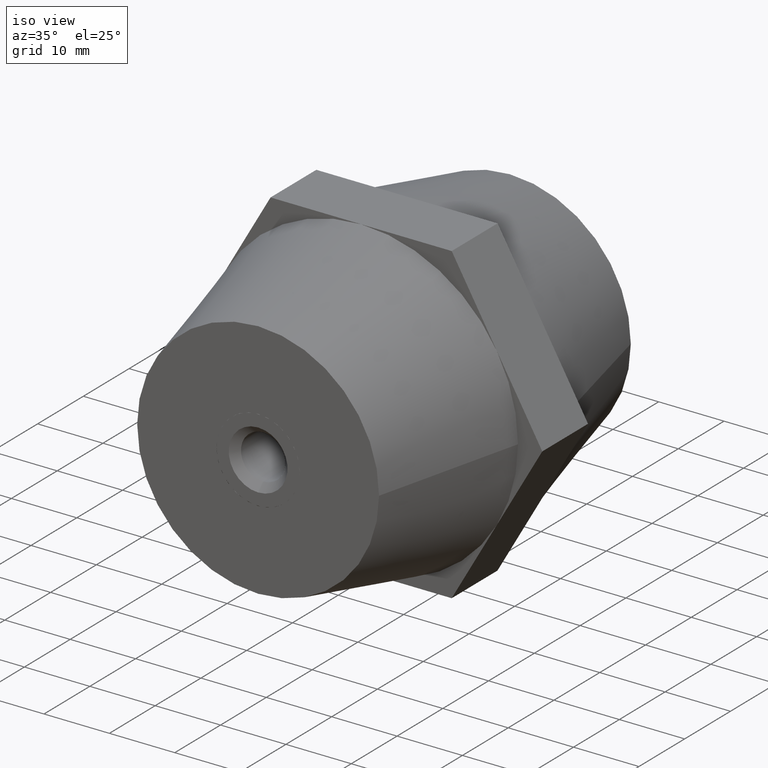
[diagram: clean part render]
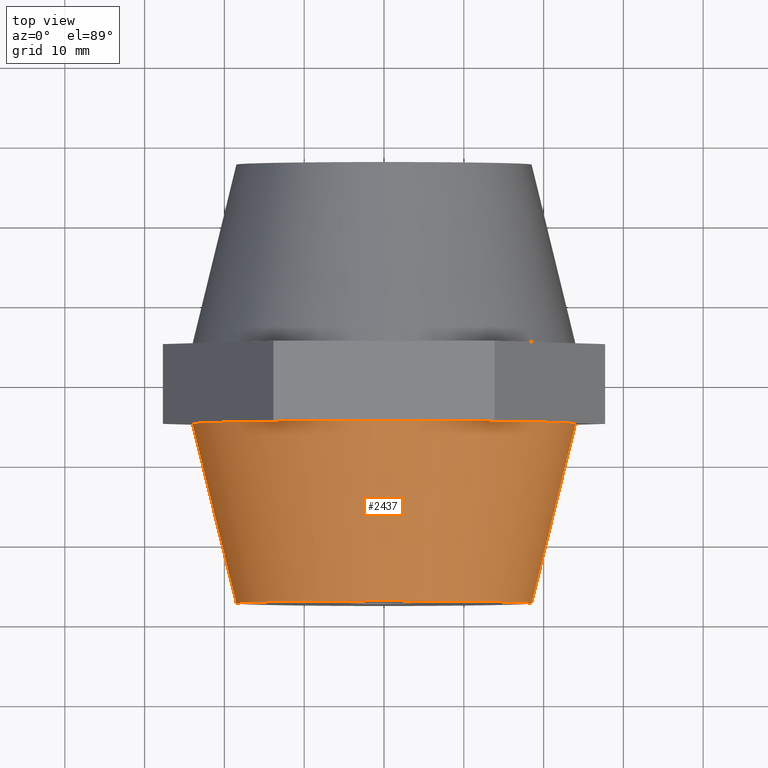
[diagram: tour spotlight — one face highlighted and labeled with its STEP entity id]
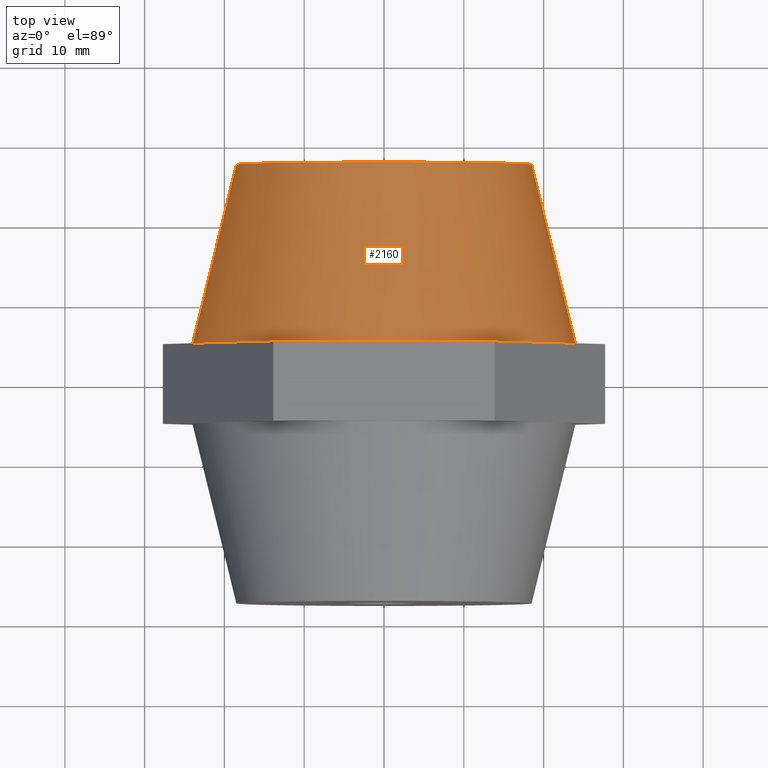
[diagram: tour spotlight — one face highlighted and labeled with its STEP entity id]
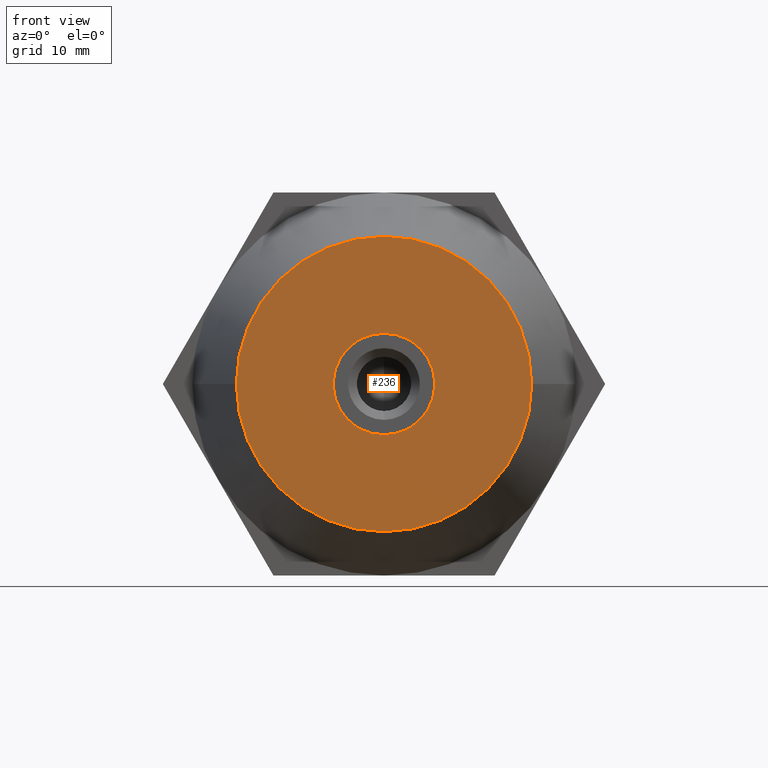
[diagram: tour spotlight — one face highlighted and labeled with its STEP entity id]
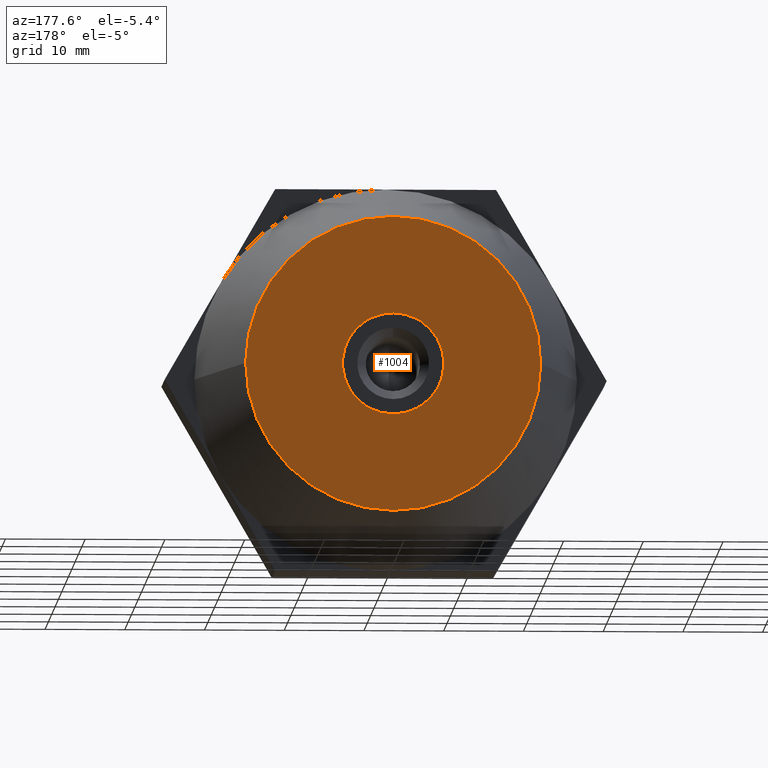
[diagram: tour spotlight — one face highlighted and labeled with its STEP entity id]
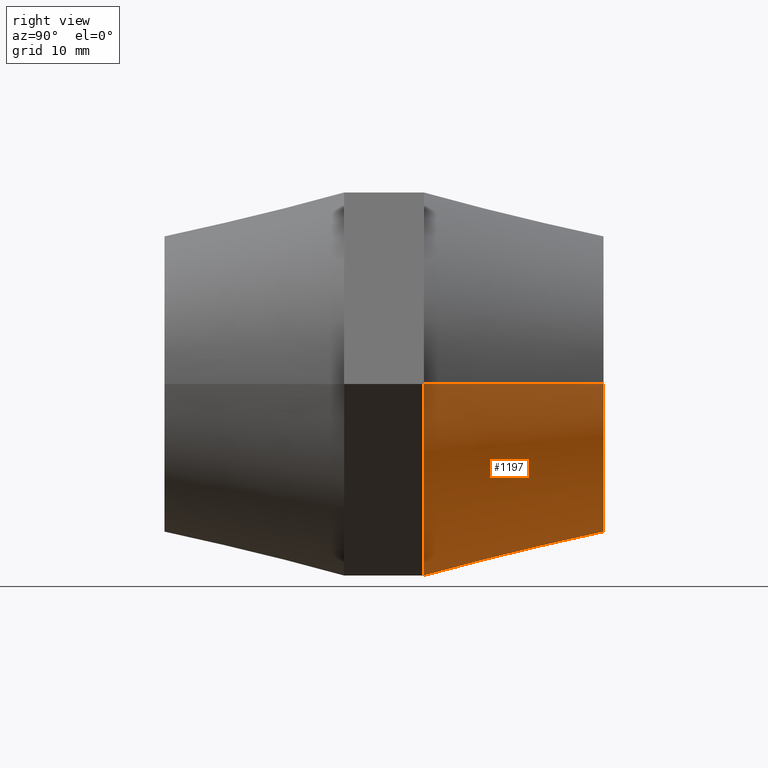
[diagram: tour spotlight — one face highlighted and labeled with its STEP entity id]
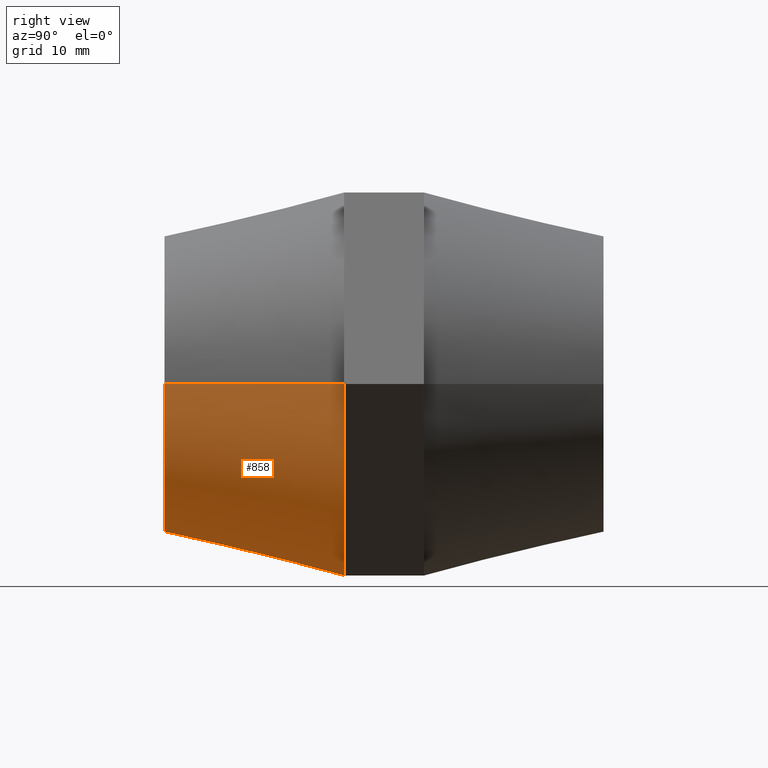
[diagram: tour spotlight — one face highlighted and labeled with its STEP entity id]
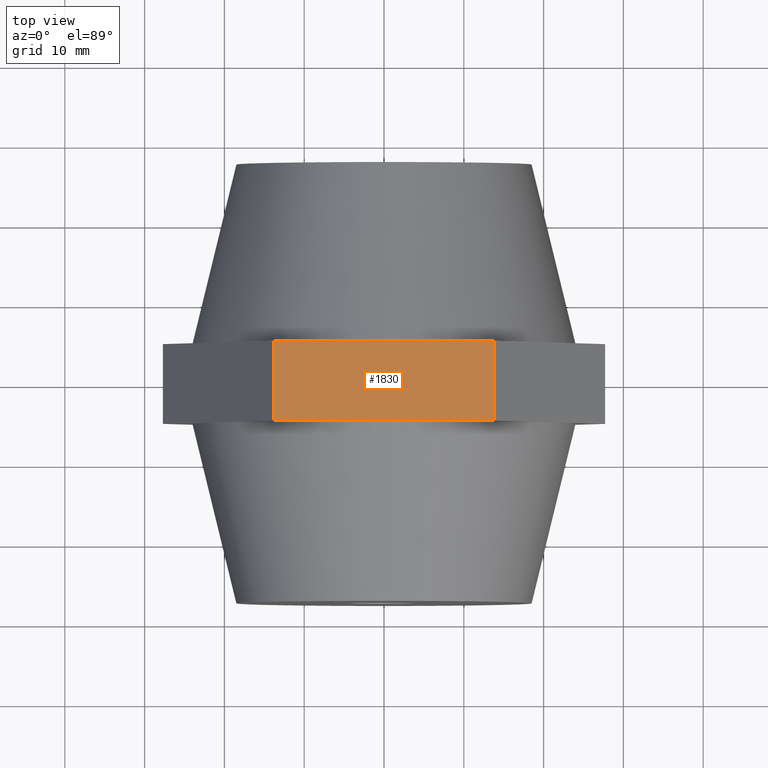
[diagram: tour spotlight — one face highlighted and labeled with its STEP entity id]
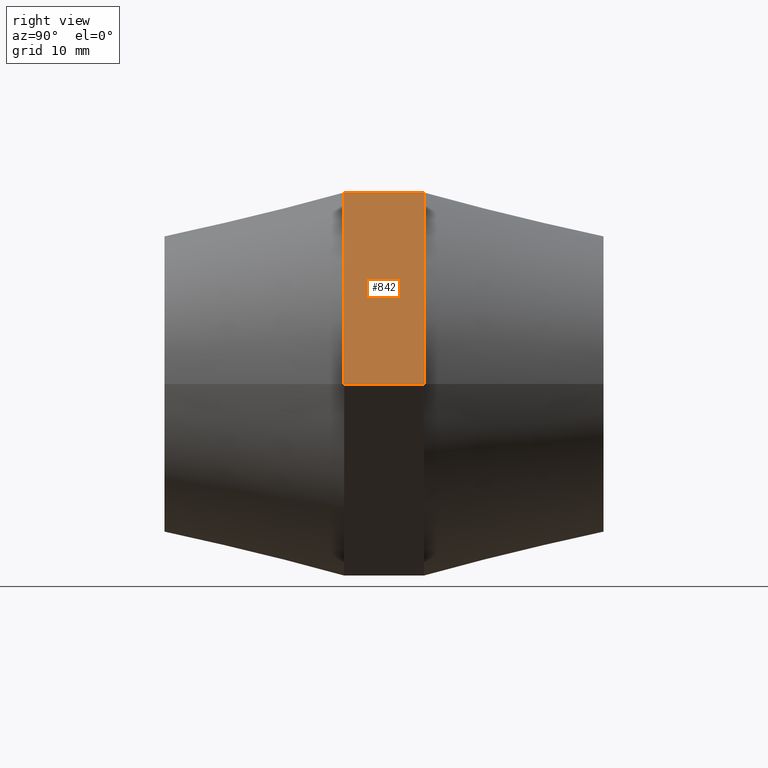
[diagram: tour spotlight — one face highlighted and labeled with its STEP entity id]
A machine part: a face-by-face anatomy tour. The part has 154 B-rep faces; the first image is the clean iso view, then the 8 largest visible faces are spotlighted one at a time (largest first), each with its STEP entity span.

Face 1 — top view, entity #2437. In plain terms, the highlighted conical surface has half-angle 13.736 deg.
Definition (entity closure, byte-faithful):
#16 = EDGE_CURVE ( 'NONE', #3440, #2326, #94, .T. ) ;
#69 = DIRECTION ( 'NONE',  ( 0.0000000000000000000, 0.0000000000000000000, 1.000000000000000000 ) ) ;
#94 = CIRCLE ( 'NONE', #2059, 24.00000000000000000 ) ;
#132 = DIRECTION ( 'NONE',  ( -1.000000000000000000, -1.875376730785737500E-016, 0.0000000000000000000 ) ) ;
#198 = AXIS2_PLACEMENT_3D ( 'NONE', #3121, #2288, #1663 ) ;
#211 = VERTEX_POINT ( 'NONE', #3705 ) ;
#287 = CARTESIAN_POINT ( 'NONE',  ( 4.476762181554124600E-016, -5.000000000000000000, 24.00000000000000000 ) ) ;
#316 = EDGE_CURVE ( 'NONE', #3604, #725, #1250, .T. ) ;
#561 = VECTOR ( 'NONE', #2937, 1000.000000000000100 ) ;
#568 = AXIS2_PLACEMENT_3D ( 'NONE', #2088, #2981, #3248 ) ;
#571 = VERTEX_POINT ( 'NONE', #2473 ) ;
#581 = ORIENTED_EDGE ( 'NONE', *, *, #16, .F. ) ;
#648 = CIRCLE ( 'NONE', #2727, 24.00000000000000000 ) ;
#713 = CARTESIAN_POINT ( 'NONE',  ( -18.49999999999999300, -27.50000000000000400, 0.0000000000000000000 ) ) ;
#725 = VERTEX_POINT ( 'NONE', #1336 ) ;
#754 = CARTESIAN_POINT ( 'NONE',  ( 24.00000000000000400, -5.000000000000000000, 2.939152317953647900E-015 ) ) ;
#936 = FACE_OUTER_BOUND ( 'NONE', #1967, .T. ) ;
#990 = AXIS2_PLACEMENT_3D ( 'NONE', #1675, #2264, #1106 ) ;
#1008 = CARTESIAN_POINT ( 'NONE',  ( 6.938893903907230000E-015, -27.50000000000000000, 0.0000000000000000000 ) ) ;
#1024 = EDGE_CURVE ( 'NONE', #1145, #3440, #3081, .T. ) ;
#1094 = EDGE_CURVE ( 'NONE', #211, #1145, #2037, .T. ) ;
#1106 = DIRECTION ( 'NONE',  ( 0.0000000000000000000, 0.0000000000000000000, 1.000000000000000000 ) ) ;
#1145 = VERTEX_POINT ( 'NONE', #287 ) ;
#1250 = LINE ( 'NONE', #1698, #3772 ) ;
#1336 = CARTESIAN_POINT ( 'NONE',  ( -23.99999999999999600, -5.000000000000000000, 0.0000000000000000000 ) ) ;
#1510 = CARTESIAN_POINT ( 'NONE',  ( 3.452305415629730200E-015, -5.000000000000000000, 9.090956650916130900E-016 ) ) ;
#1541 = DIRECTION ( 'NONE',  ( 0.0000000000000000000, 1.000000000000000000, 0.0000000000000000000 ) ) ;
#1663 = DIRECTION ( 'NONE',  ( -1.000000000000000000, -1.445602896647339200E-016, 0.0000000000000000000 ) ) ;
#1675 = CARTESIAN_POINT ( 'NONE',  ( 3.452305415629730200E-015, -5.000000000000000000, 9.090956650916130900E-016 ) ) ;
#1698 = CARTESIAN_POINT ( 'NONE',  ( -23.99999999999999600, -5.000000000000003600, 0.0000000000000000000 ) ) ;
#1902 = DIRECTION ( 'NONE',  ( -1.549594883678885000E-016, 1.000000000000000000, 0.0000000000000000000 ) ) ;
#1927 = ORIENTED_EDGE ( 'NONE', *, *, #1024, .F. ) ;
#1948 = ORIENTED_EDGE ( 'NONE', *, *, #2583, .F. ) ;
#1967 = EDGE_LOOP ( 'NONE', ( #2545, #2478, #581, #1927, #3335, #1948, #2348 ) ) ;
#2037 = CIRCLE ( 'NONE', #198, 24.00000000000000000 ) ;
#2059 = AXIS2_PLACEMENT_3D ( 'NONE', #1510, #2384, #2994 ) ;
#2088 = CARTESIAN_POINT ( 'NONE',  ( 3.452305415629730200E-015, -5.000000000000000000, 0.0000000000000000000 ) ) ;
#2264 = DIRECTION ( 'NONE',  ( 0.0000000000000000000, 1.000000000000000000, 0.0000000000000000000 ) ) ;
#2270 = EDGE_CURVE ( 'NONE', #3604, #571, #2798, .T. ) ;
#2288 = DIRECTION ( 'NONE',  ( -1.549594883678885000E-016, 1.000000000000000000, 0.0000000000000000000 ) ) ;
#2326 = VERTEX_POINT ( 'NONE', #754 ) ;
#2348 = ORIENTED_EDGE ( 'NONE', *, *, #316, .F. ) ;
#2382 = AXIS2_PLACEMENT_3D ( 'NONE', #1008, #1902, #132 ) ;
#2384 = DIRECTION ( 'NONE',  ( 0.0000000000000000000, 1.000000000000000000, 0.0000000000000000000 ) ) ;
#2437 = ADVANCED_FACE ( 'NONE', ( #936 ), #2997, .T. ) ;
#2473 = CARTESIAN_POINT ( 'NONE',  ( 18.50000000000000700, -27.49999999999999600, 2.602374448188125100E-015 ) ) ;
#2478 = ORIENTED_EDGE ( 'NONE', *, *, #2652, .T. ) ;
#2545 = ORIENTED_EDGE ( 'NONE', *, *, #2270, .T. ) ;
#2583 = EDGE_CURVE ( 'NONE', #725, #211, #648, .T. ) ;
#2652 = EDGE_CURVE ( 'NONE', #571, #2326, #3266, .T. ) ;
#2727 = AXIS2_PLACEMENT_3D ( 'NONE', #3280, #1541, #69 ) ;
#2798 = CIRCLE ( 'NONE', #2382, 18.50000000000000000 ) ;
#2937 = DIRECTION ( 'NONE',  ( 0.2374530904769897900, 0.9713990064967775700, 2.907961672002925300E-017 ) ) ;
#2981 = DIRECTION ( 'NONE',  ( -1.549594883678885000E-016, 1.000000000000000000, 0.0000000000000000000 ) ) ;
#2994 = DIRECTION ( 'NONE',  ( 0.0000000000000000000, 0.0000000000000000000, 1.000000000000000000 ) ) ;
#2997 = CONICAL_SURFACE ( 'NONE', #568, 24.00000000000000000, 0.2397431088704564400 ) ;
#3081 = CIRCLE ( 'NONE', #990, 24.00000000000000000 ) ;
#3121 = CARTESIAN_POINT ( 'NONE',  ( 3.452305415629730200E-015, -5.000000000000000000, 0.0000000000000000000 ) ) ;
#3209 = CARTESIAN_POINT ( 'NONE',  ( 24.00000000000000400, -4.999999999999996400, 2.939152317953647900E-015 ) ) ;
#3248 = DIRECTION ( 'NONE',  ( -1.000000000000000000, -1.445602896647339200E-016, 0.0000000000000000000 ) ) ;
#3266 = LINE ( 'NONE', #3209, #561 ) ;
#3280 = CARTESIAN_POINT ( 'NONE',  ( 3.452305415629730200E-015, -5.000000000000000000, 9.090956650916130900E-016 ) ) ;
#3335 = ORIENTED_EDGE ( 'NONE', *, *, #1094, .F. ) ;
#3440 = VERTEX_POINT ( 'NONE', #3521 ) ;
#3443 = DIRECTION ( 'NONE',  ( -0.2374530904769900600, 0.9713990064967775700, 0.0000000000000000000 ) ) ;
#3521 = CARTESIAN_POINT ( 'NONE',  ( 20.78460969082655300, -5.000000000000000000, 12.00000000000000000 ) ) ;
#3604 = VERTEX_POINT ( 'NONE', #713 ) ;
#3705 = CARTESIAN_POINT ( 'NONE',  ( -20.78460969082655300, -5.000000000000000000, 12.00000000000000000 ) ) ;
#3772 = VECTOR ( 'NONE', #3443, 999.9999999999998900 ) ;

Face 2 — top view, entity #2160. In plain terms, the highlighted conical surface has half-angle 13.736 deg.
Definition (entity closure, byte-faithful):
#126 = AXIS2_PLACEMENT_3D ( 'NONE', #135, #1905, #2198 ) ;
#135 = CARTESIAN_POINT ( 'NONE',  ( 1.902710531950845100E-015, 5.000000000000000000, 0.0000000000000000000 ) ) ;
#160 = DIRECTION ( 'NONE',  ( -1.549594883678885000E-016, 1.000000000000000000, 0.0000000000000000000 ) ) ;
#161 = CARTESIAN_POINT ( 'NONE',  ( -18.50000000000000000, 27.49999999999999600, 2.265596578422603400E-015 ) ) ;
#171 = VERTEX_POINT ( 'NONE', #781 ) ;
#224 = CONICAL_SURFACE ( 'NONE', #2009, 18.50000000000000000, 0.2397431088704571600 ) ;
#237 = CIRCLE ( 'NONE', #2149, 24.00000000000000000 ) ;
#266 = VERTEX_POINT ( 'NONE', #2320 ) ;
#293 = EDGE_CURVE ( 'NONE', #1277, #3325, #1523, .T. ) ;
#312 = CARTESIAN_POINT ( 'NONE',  ( -1.583877956326650100E-015, 27.50000000000000000, 0.0000000000000000000 ) ) ;
#314 = VECTOR ( 'NONE', #3153, 1000.000000000000100 ) ;
#329 = DIRECTION ( 'NONE',  ( -1.000000000000000000, -1.875376730785737500E-016, 0.0000000000000000000 ) ) ;
#503 = VERTEX_POINT ( 'NONE', #1619 ) ;
#505 = VECTOR ( 'NONE', #3698, 1000.000000000000200 ) ;
#521 = EDGE_CURVE ( 'NONE', #266, #3163, #966, .T. ) ;
#573 = EDGE_CURVE ( 'NONE', #171, #696, #3406, .T. ) ;
#679 = CIRCLE ( 'NONE', #2510, 24.00000000000000000 ) ;
#696 = VERTEX_POINT ( 'NONE', #3004 ) ;
#749 = DIRECTION ( 'NONE',  ( 1.549594883678885000E-016, -1.000000000000000000, 0.0000000000000000000 ) ) ;
#774 = CARTESIAN_POINT ( 'NONE',  ( 1.902710531950845100E-015, 5.000000000000000000, 0.0000000000000000000 ) ) ;
#781 = CARTESIAN_POINT ( 'NONE',  ( -18.50000000000000000, 27.49999999999999600, 2.602374448188125800E-015 ) ) ;
#966 = CIRCLE ( 'NONE', #126, 24.00000000000000000 ) ;
#987 = ORIENTED_EDGE ( 'NONE', *, *, #2959, .T. ) ;
#1075 = ORIENTED_EDGE ( 'NONE', *, *, #1987, .T. ) ;
#1102 = DIRECTION ( 'NONE',  ( -1.549594883678885000E-016, 1.000000000000000000, 0.0000000000000000000 ) ) ;
#1138 = ORIENTED_EDGE ( 'NONE', *, *, #521, .T. ) ;
#1195 = FACE_OUTER_BOUND ( 'NONE', #2906, .T. ) ;
#1277 = VERTEX_POINT ( 'NONE', #2972 ) ;
#1397 = CARTESIAN_POINT ( 'NONE',  ( 18.50000000000000000, 27.50000000000000400, 0.0000000000000000000 ) ) ;
#1439 = ORIENTED_EDGE ( 'NONE', *, *, #573, .T. ) ;
#1523 = LINE ( 'NONE', #1397, #314 ) ;
#1619 = CARTESIAN_POINT ( 'NONE',  ( 20.78460969082655300, 5.000000000000000000, 12.00000000000000000 ) ) ;
#1646 = CARTESIAN_POINT ( 'NONE',  ( 1.902710531950845100E-015, 5.000000000000000000, 0.0000000000000000000 ) ) ;
#1857 = ORIENTED_EDGE ( 'NONE', *, *, #3558, .F. ) ;
#1905 = DIRECTION ( 'NONE',  ( -1.549594883678885000E-016, 1.000000000000000000, 0.0000000000000000000 ) ) ;
#1987 = EDGE_CURVE ( 'NONE', #3163, #503, #3019, .T. ) ;
#2009 = AXIS2_PLACEMENT_3D ( 'NONE', #2778, #749, #2499 ) ;
#2099 = CARTESIAN_POINT ( 'NONE',  ( 24.00000000000001800, 5.000000000000003600, 0.0000000000000000000 ) ) ;
#2149 = AXIS2_PLACEMENT_3D ( 'NONE', #3383, #160, #3044 ) ;
#2160 = ADVANCED_FACE ( 'NONE', ( #1195 ), #224, .T. ) ;
#2198 = DIRECTION ( 'NONE',  ( -1.000000000000000000, -1.445602896647339200E-016, 0.0000000000000000000 ) ) ;
#2233 = EDGE_CURVE ( 'NONE', #503, #3325, #679, .T. ) ;
#2320 = CARTESIAN_POINT ( 'NONE',  ( -20.78460969082655300, 5.000000000000000000, 12.00000000000000000 ) ) ;
#2371 = DIRECTION ( 'NONE',  ( -1.549594883678885000E-016, 1.000000000000000000, 0.0000000000000000000 ) ) ;
#2453 = AXIS2_PLACEMENT_3D ( 'NONE', #1646, #1102, #2842 ) ;
#2499 = DIRECTION ( 'NONE',  ( 1.000000000000000000, 1.875376730785737500E-016, 0.0000000000000000000 ) ) ;
#2510 = AXIS2_PLACEMENT_3D ( 'NONE', #774, #3720, #2848 ) ;
#2744 = ORIENTED_EDGE ( 'NONE', *, *, #2233, .T. ) ;
#2778 = CARTESIAN_POINT ( 'NONE',  ( -1.583877956326650100E-015, 27.50000000000000000, 0.0000000000000000000 ) ) ;
#2842 = DIRECTION ( 'NONE',  ( -1.000000000000000000, -1.445602896647339200E-016, 0.0000000000000000000 ) ) ;
#2848 = DIRECTION ( 'NONE',  ( -1.000000000000000000, -1.445602896647339200E-016, 0.0000000000000000000 ) ) ;
#2906 = EDGE_LOOP ( 'NONE', ( #1857, #1439, #987, #1138, #1075, #2744, #2951 ) ) ;
#2951 = ORIENTED_EDGE ( 'NONE', *, *, #293, .F. ) ;
#2959 = EDGE_CURVE ( 'NONE', #696, #266, #237, .T. ) ;
#2972 = CARTESIAN_POINT ( 'NONE',  ( 18.50000000000000000, 27.50000000000000400, 0.0000000000000000000 ) ) ;
#2979 = AXIS2_PLACEMENT_3D ( 'NONE', #312, #2371, #329 ) ;
#3004 = CARTESIAN_POINT ( 'NONE',  ( -24.00000000000001100, 4.999999999999996400, 2.939152317953649500E-015 ) ) ;
#3019 = CIRCLE ( 'NONE', #2453, 24.00000000000000000 ) ;
#3044 = DIRECTION ( 'NONE',  ( -1.000000000000000000, -1.445602896647339200E-016, 0.0000000000000000000 ) ) ;
#3153 = DIRECTION ( 'NONE',  ( 0.2374530904769907300, -0.9713990064967772400, 0.0000000000000000000 ) ) ;
#3163 = VERTEX_POINT ( 'NONE', #3453 ) ;
#3267 = CIRCLE ( 'NONE', #2979, 18.50000000000000000 ) ;
#3325 = VERTEX_POINT ( 'NONE', #2099 ) ;
#3383 = CARTESIAN_POINT ( 'NONE',  ( 1.902710531950845100E-015, 5.000000000000000000, 0.0000000000000000000 ) ) ;
#3406 = LINE ( 'NONE', #161, #505 ) ;
#3453 = CARTESIAN_POINT ( 'NONE',  ( -4.588507153800969100E-015, 5.000000000000000000, 24.00000000000000000 ) ) ;
#3558 = EDGE_CURVE ( 'NONE', #171, #1277, #3267, .T. ) ;
#3698 = DIRECTION ( 'NONE',  ( -0.2374530904769904800, -0.9713990064967773500, 2.907961672002933900E-017 ) ) ;
#3720 = DIRECTION ( 'NONE',  ( -1.549594883678885000E-016, 1.000000000000000000, 0.0000000000000000000 ) ) ;

Face 3 — front view, entity #236. In plain terms, the highlighted planar face has unit normal (0, -1, 0).
Definition (entity closure, byte-faithful):
#12 = EDGE_CURVE ( 'NONE', #1123, #3477, #880, .T. ) ;
#78 = EDGE_CURVE ( 'NONE', #571, #3604, #2756, .T. ) ;
#132 = DIRECTION ( 'NONE',  ( -1.000000000000000000, -1.875376730785737500E-016, 0.0000000000000000000 ) ) ;
#139 = CARTESIAN_POINT ( 'NONE',  ( -2.866252530374500100, -27.50000000000000000, 5.677516748731080500 ) ) ;
#223 = EDGE_CURVE ( 'NONE', #1084, #1231, #1017, .T. ) ;
#228 = DIRECTION ( 'NONE',  ( 1.000000000000000000, 0.0000000000000000000, 0.0000000000000000000 ) ) ;
#236 = ADVANCED_FACE ( 'NONE', ( #2337, #1705 ), #1635, .T. ) ;
#268 = ORIENTED_EDGE ( 'NONE', *, *, #1778, .T. ) ;
#308 = CARTESIAN_POINT ( 'NONE',  ( -10.69999999999999900, -27.50000000000000000, 13.50999629903723900 ) ) ;
#311 = DIRECTION ( 'NONE',  ( 1.000000000000000000, 0.0000000000000000000, -1.776356839400250500E-015 ) ) ;
#320 = EDGE_CURVE ( 'NONE', #2868, #2190, #2215, .T. ) ;
#338 = DIRECTION ( 'NONE',  ( 0.8660254037844387100, 1.341988534840309600E-016, -0.4999999999999998900 ) ) ;
#346 = CARTESIAN_POINT ( 'NONE',  ( -10.69999999999999900, -27.50000000000000000, -13.50999629903723900 ) ) ;
#392 = AXIS2_PLACEMENT_3D ( 'NONE', #2016, #3165, #2027 ) ;
#438 = ORIENTED_EDGE ( 'NONE', *, *, #3201, .T. ) ;
#525 = CARTESIAN_POINT ( 'NONE',  ( -18.50000000000000000, -27.50000000000000000, 0.0000000000000000000 ) ) ;
#549 = DIRECTION ( 'NONE',  ( 1.549594883678885000E-016, -1.000000000000000000, 0.0000000000000000000 ) ) ;
#556 = CARTESIAN_POINT ( 'NONE',  ( 2.866252530374495200, -27.50000000000000000, 5.677516748731089400 ) ) ;
#571 = VERTEX_POINT ( 'NONE', #2473 ) ;
#649 = VECTOR ( 'NONE', #3190, 1000.000000000000000 ) ;
#680 = CARTESIAN_POINT ( 'NONE',  ( 3.483747469625504900, -27.50000000000000000, 5.321005879331280200 ) ) ;
#705 = ORIENTED_EDGE ( 'NONE', *, *, #12, .T. ) ;
#713 = CARTESIAN_POINT ( 'NONE',  ( -18.49999999999999300, -27.50000000000000400, 0.0000000000000000000 ) ) ;
#740 = VECTOR ( 'NONE', #2399, 1000.000000000000000 ) ;
#784 = ORIENTED_EDGE ( 'NONE', *, *, #2270, .F. ) ;
#794 = ORIENTED_EDGE ( 'NONE', *, *, #1858, .T. ) ;
#840 = CARTESIAN_POINT ( 'NONE',  ( 3.483747469625550200, -27.50000000000000000, -5.321005879331259800 ) ) ;
#856 = CARTESIAN_POINT ( 'NONE',  ( -17.05000000000000100, -27.50000000000000000, 2.511473670974870000 ) ) ;
#880 = LINE ( 'NONE', #346, #740 ) ;
#902 = CARTESIAN_POINT ( 'NONE',  ( 2.866252530374454800, -27.50000000000000000, -5.677516748731109800 ) ) ;
#1008 = CARTESIAN_POINT ( 'NONE',  ( 6.938893903907230000E-015, -27.50000000000000000, 0.0000000000000000000 ) ) ;
#1017 = CIRCLE ( 'NONE', #392, 6.360000000000000300 ) ;
#1041 = DIRECTION ( 'NONE',  ( 1.000000000000000000, 0.0000000000000000000, 0.0000000000000000000 ) ) ;
#1045 = ORIENTED_EDGE ( 'NONE', *, *, #3653, .T. ) ;
#1084 = VERTEX_POINT ( 'NONE', #3432 ) ;
#1112 = LINE ( 'NONE', #308, #3398 ) ;
#1123 = VERTEX_POINT ( 'NONE', #840 ) ;
#1162 = ORIENTED_EDGE ( 'NONE', *, *, #1981, .T. ) ;
#1231 = VERTEX_POINT ( 'NONE', #1519 ) ;
#1268 = AXIS2_PLACEMENT_3D ( 'NONE', #1473, #2095, #311 ) ;
#1269 = DIRECTION ( 'NONE',  ( -1.000000000000000000, -1.875376730785737500E-016, 0.0000000000000000000 ) ) ;
#1270 = AXIS2_PLACEMENT_3D ( 'NONE', #3616, #3657, #1269 ) ;
#1271 = ORIENTED_EDGE ( 'NONE', *, *, #3701, .T. ) ;
#1295 = AXIS2_PLACEMENT_3D ( 'NONE', #2807, #1670, #3148 ) ;
#1314 = VECTOR ( 'NONE', #2877, 1000.000000000000000 ) ;
#1428 = CIRCLE ( 'NONE', #2129, 6.360000000000000300 ) ;
#1473 = CARTESIAN_POINT ( 'NONE',  ( 2.711039984160495000E-015, -27.50000000000000000, 0.0000000000000000000 ) ) ;
#1475 = CIRCLE ( 'NONE', #1268, 6.360000000000000300 ) ;
#1519 = CARTESIAN_POINT ( 'NONE',  ( -3.483747469625495100, -27.50000000000000000, 5.321005879331290000 ) ) ;
#1539 = LINE ( 'NONE', #2238, #3782 ) ;
#1575 = LINE ( 'NONE', #856, #1314 ) ;
#1603 = VERTEX_POINT ( 'NONE', #3783 ) ;
#1615 = VECTOR ( 'NONE', #3775, 1000.000000000000000 ) ;
#1622 = CARTESIAN_POINT ( 'NONE',  ( 2.711039984160495000E-015, -27.50000000000000000, 0.0000000000000000000 ) ) ;
#1627 = CIRCLE ( 'NONE', #2916, 6.360000000000000300 ) ;
#1635 = PLANE ( 'NONE',  #3556 ) ;
#1670 = DIRECTION ( 'NONE',  ( -1.549594883678885000E-016, 1.000000000000000000, -0.0000000000000000000 ) ) ;
#1687 = CARTESIAN_POINT ( 'NONE',  ( 2.711039984160495000E-015, -27.50000000000000000, 0.0000000000000000000 ) ) ;
#1697 = DIRECTION ( 'NONE',  ( -1.549594883678885000E-016, 1.000000000000000000, -0.0000000000000000000 ) ) ;
#1705 = FACE_BOUND ( 'NONE', #3239, .T. ) ;
#1710 = CARTESIAN_POINT ( 'NONE',  ( 6.349999999999999600, -27.50000000000000000, 5.879136658050139500E-015 ) ) ;
#1762 = CARTESIAN_POINT ( 'NONE',  ( -6.349999999999999600, -27.50000000000000000, 2.874507460575825000E-015 ) ) ;
#1778 = EDGE_CURVE ( 'NONE', #3176, #2930, #1112, .T. ) ;
#1807 = CIRCLE ( 'NONE', #1295, 6.360000000000000300 ) ;
#1858 = EDGE_CURVE ( 'NONE', #1937, #3176, #1475, .T. ) ;
#1902 = DIRECTION ( 'NONE',  ( -1.549594883678885000E-016, 1.000000000000000000, 0.0000000000000000000 ) ) ;
#1909 = CARTESIAN_POINT ( 'NONE',  ( 2.711039984160495000E-015, -27.50000000000000000, 0.0000000000000000000 ) ) ;
#1934 = EDGE_CURVE ( 'NONE', #2930, #2868, #1428, .T. ) ;
#1937 = VERTEX_POINT ( 'NONE', #139 ) ;
#1981 = EDGE_CURVE ( 'NONE', #2190, #1123, #2525, .T. ) ;
#2016 = CARTESIAN_POINT ( 'NONE',  ( 2.711039984160495000E-015, -27.50000000000000000, 0.0000000000000000000 ) ) ;
#2027 = DIRECTION ( 'NONE',  ( 1.000000000000000000, 0.0000000000000000000, 1.776356839400250500E-015 ) ) ;
#2069 = CARTESIAN_POINT ( 'NONE',  ( -6.349999999999999600, -27.50000000000000000, -0.3565108693997484600 ) ) ;
#2095 = DIRECTION ( 'NONE',  ( -1.549594883678885000E-016, 1.000000000000000000, -0.0000000000000000000 ) ) ;
#2129 = AXIS2_PLACEMENT_3D ( 'NONE', #1622, #3678, #1041 ) ;
#2141 = ORIENTED_EDGE ( 'NONE', *, *, #3104, .T. ) ;
#2190 = VERTEX_POINT ( 'NONE', #3381 ) ;
#2215 = LINE ( 'NONE', #1710, #1615 ) ;
#2229 = DIRECTION ( 'NONE',  ( 0.8660254037844387100, 1.341988534840307600E-016, 0.4999999999999998900 ) ) ;
#2238 = CARTESIAN_POINT ( 'NONE',  ( -17.05000000000000100, -27.50000000000000000, -2.511473670974875300 ) ) ;
#2270 = EDGE_CURVE ( 'NONE', #3604, #571, #2798, .T. ) ;
#2337 = FACE_OUTER_BOUND ( 'NONE', #3431, .T. ) ;
#2367 = ORIENTED_EDGE ( 'NONE', *, *, #78, .F. ) ;
#2382 = AXIS2_PLACEMENT_3D ( 'NONE', #1008, #1902, #132 ) ;
#2399 = DIRECTION ( 'NONE',  ( -0.8660254037844387100, -1.341988534840307600E-016, -0.4999999999999998900 ) ) ;
#2464 = VERTEX_POINT ( 'NONE', #3047 ) ;
#2473 = CARTESIAN_POINT ( 'NONE',  ( 18.50000000000000700, -27.49999999999999600, 2.602374448188125100E-015 ) ) ;
#2525 = CIRCLE ( 'NONE', #3172, 6.360000000000000300 ) ;
#2730 = ORIENTED_EDGE ( 'NONE', *, *, #320, .T. ) ;
#2756 = CIRCLE ( 'NONE', #1270, 18.50000000000000000 ) ;
#2798 = CIRCLE ( 'NONE', #2382, 18.50000000000000000 ) ;
#2807 = CARTESIAN_POINT ( 'NONE',  ( 2.711039984160495000E-015, -27.50000000000000000, 0.0000000000000000000 ) ) ;
#2822 = ORIENTED_EDGE ( 'NONE', *, *, #3454, .T. ) ;
#2868 = VERTEX_POINT ( 'NONE', #3609 ) ;
#2877 = DIRECTION ( 'NONE',  ( -0.8660254037844387100, -1.341988534840307600E-016, 0.4999999999999998900 ) ) ;
#2916 = AXIS2_PLACEMENT_3D ( 'NONE', #1909, #3361, #3008 ) ;
#2930 = VERTEX_POINT ( 'NONE', #680 ) ;
#3008 = DIRECTION ( 'NONE',  ( 1.000000000000000000, 0.0000000000000000000, 0.0000000000000000000 ) ) ;
#3047 = CARTESIAN_POINT ( 'NONE',  ( -2.866252530374529900, -27.50000000000000000, -5.677516748731069800 ) ) ;
#3062 = ORIENTED_EDGE ( 'NONE', *, *, #1934, .T. ) ;
#3070 = ORIENTED_EDGE ( 'NONE', *, *, #223, .T. ) ;
#3090 = LINE ( 'NONE', #1762, #649 ) ;
#3104 = EDGE_CURVE ( 'NONE', #3477, #2464, #1807, .T. ) ;
#3148 = DIRECTION ( 'NONE',  ( 1.000000000000000000, 0.0000000000000000000, 0.0000000000000000000 ) ) ;
#3165 = DIRECTION ( 'NONE',  ( -1.549594883678885000E-016, 1.000000000000000000, -0.0000000000000000000 ) ) ;
#3172 = AXIS2_PLACEMENT_3D ( 'NONE', #1687, #1697, #228 ) ;
#3176 = VERTEX_POINT ( 'NONE', #556 ) ;
#3187 = DIRECTION ( 'NONE',  ( 1.000000000000000000, 1.549594883678885000E-016, 0.0000000000000000000 ) ) ;
#3190 = DIRECTION ( 'NONE',  ( -2.365849761790805000E-016, -3.666108686423940200E-032, 1.000000000000000000 ) ) ;
#3201 = EDGE_CURVE ( 'NONE', #2464, #1603, #1575, .T. ) ;
#3239 = EDGE_LOOP ( 'NONE', ( #268, #3062, #2730, #1162, #705, #2141, #438, #1045, #2822, #3070, #1271, #794 ) ) ;
#3361 = DIRECTION ( 'NONE',  ( -1.549594883678885000E-016, 1.000000000000000000, -0.0000000000000000000 ) ) ;
#3364 = VERTEX_POINT ( 'NONE', #2069 ) ;
#3381 = CARTESIAN_POINT ( 'NONE',  ( 6.349999999999999600, -27.50000000000000000, -0.3565108693998939600 ) ) ;
#3398 = VECTOR ( 'NONE', #338, 1000.000000000000000 ) ;
#3431 = EDGE_LOOP ( 'NONE', ( #784, #2367 ) ) ;
#3432 = CARTESIAN_POINT ( 'NONE',  ( -6.349999999999999600, -27.50000000000000000, 0.3565108693997454700 ) ) ;
#3454 = EDGE_CURVE ( 'NONE', #3364, #1084, #3090, .T. ) ;
#3477 = VERTEX_POINT ( 'NONE', #902 ) ;
#3556 = AXIS2_PLACEMENT_3D ( 'NONE', #525, #549, #3187 ) ;
#3604 = VERTEX_POINT ( 'NONE', #713 ) ;
#3609 = CARTESIAN_POINT ( 'NONE',  ( 6.349999999999999600, -27.50000000000000000, 0.3565108693998719800 ) ) ;
#3616 = CARTESIAN_POINT ( 'NONE',  ( 6.938893903907230000E-015, -27.50000000000000000, 0.0000000000000000000 ) ) ;
#3653 = EDGE_CURVE ( 'NONE', #1603, #3364, #1627, .T. ) ;
#3657 = DIRECTION ( 'NONE',  ( -1.549594883678885000E-016, 1.000000000000000000, 0.0000000000000000000 ) ) ;
#3678 = DIRECTION ( 'NONE',  ( -1.549594883678885000E-016, 1.000000000000000000, -0.0000000000000000000 ) ) ;
#3701 = EDGE_CURVE ( 'NONE', #1231, #1937, #1539, .T. ) ;
#3775 = DIRECTION ( 'NONE',  ( 2.365849761790800100E-016, 3.666108686423940200E-032, -1.000000000000000000 ) ) ;
#3782 = VECTOR ( 'NONE', #2229, 1000.000000000000000 ) ;
#3783 = CARTESIAN_POINT ( 'NONE',  ( -3.483747469625464900, -27.50000000000000000, -5.321005879331310400 ) ) ;

Face 4 — auxiliary view, entity #1004. In plain terms, the highlighted planar face has unit normal (-0, 1, 0).
Definition (entity closure, byte-faithful):
#41 = CARTESIAN_POINT ( 'NONE',  ( -2.866252530374690200, 27.50000000000000000, 5.677516748730970300 ) ) ;
#48 = CARTESIAN_POINT ( 'NONE',  ( -6.349999999999999600, 27.50000000000000000, -0.3565108693995839900 ) ) ;
#50 = FACE_BOUND ( 'NONE', #1034, .T. ) ;
#56 = AXIS2_PLACEMENT_3D ( 'NONE', #2543, #496, #783 ) ;
#62 = CARTESIAN_POINT ( 'NONE',  ( -9.947681838558569700E-016, 27.50000000000000000, 0.0000000000000000000 ) ) ;
#87 = CARTESIAN_POINT ( 'NONE',  ( -6.349999999999999600, 27.50000000000000000, -2.874507460575825000E-015 ) ) ;
#96 = DIRECTION ( 'NONE',  ( 0.8660254037844387100, 1.341988534840309600E-016, 0.4999999999999998900 ) ) ;
#136 = CIRCLE ( 'NONE', #3373, 6.360000000000000300 ) ;
#171 = VERTEX_POINT ( 'NONE', #781 ) ;
#247 = DIRECTION ( 'NONE',  ( -1.000000000000000000, 0.0000000000000000000, -1.776356839400250500E-015 ) ) ;
#262 = VERTEX_POINT ( 'NONE', #2040 ) ;
#307 = DIRECTION ( 'NONE',  ( 1.549594883678885000E-016, -1.000000000000000000, -0.0000000000000000000 ) ) ;
#312 = CARTESIAN_POINT ( 'NONE',  ( -1.583877956326650100E-015, 27.50000000000000000, 0.0000000000000000000 ) ) ;
#329 = DIRECTION ( 'NONE',  ( -1.000000000000000000, -1.875376730785737500E-016, 0.0000000000000000000 ) ) ;
#393 = VERTEX_POINT ( 'NONE', #48 ) ;
#449 = EDGE_CURVE ( 'NONE', #2278, #1923, #2528, .T. ) ;
#462 = VERTEX_POINT ( 'NONE', #1248 ) ;
#496 = DIRECTION ( 'NONE',  ( 1.549594883678885000E-016, -1.000000000000000000, -0.0000000000000000000 ) ) ;
#542 = EDGE_CURVE ( 'NONE', #3488, #462, #1742, .T. ) ;
#552 = VECTOR ( 'NONE', #96, 1000.000000000000000 ) ;
#586 = ORIENTED_EDGE ( 'NONE', *, *, #2782, .T. ) ;
#616 = EDGE_CURVE ( 'NONE', #262, #1357, #2618, .T. ) ;
#622 = CARTESIAN_POINT ( 'NONE',  ( -9.947681838558569700E-016, 27.50000000000000000, 0.0000000000000000000 ) ) ;
#637 = FACE_OUTER_BOUND ( 'NONE', #1088, .T. ) ;
#658 = AXIS2_PLACEMENT_3D ( 'NONE', #3043, #2832, #3502 ) ;
#674 = CARTESIAN_POINT ( 'NONE',  ( 3.483747469625294800, 27.50000000000000000, 5.321005879331409900 ) ) ;
#727 = CARTESIAN_POINT ( 'NONE',  ( -9.947681838558569700E-016, 27.50000000000000000, 0.0000000000000000000 ) ) ;
#739 = CARTESIAN_POINT ( 'NONE',  ( -17.05000000000000100, 27.50000000000000000, 2.511473670974875300 ) ) ;
#760 = CARTESIAN_POINT ( 'NONE',  ( -18.50000000000000000, 27.50000000000000000, 0.0000000000000000000 ) ) ;
#764 = EDGE_CURVE ( 'NONE', #393, #3488, #3636, .T. ) ;
#781 = CARTESIAN_POINT ( 'NONE',  ( -18.50000000000000000, 27.49999999999999600, 2.602374448188125800E-015 ) ) ;
#783 = DIRECTION ( 'NONE',  ( -1.000000000000000000, 0.0000000000000000000, 0.0000000000000000000 ) ) ;
#846 = AXIS2_PLACEMENT_3D ( 'NONE', #62, #307, #2366 ) ;
#860 = ORIENTED_EDGE ( 'NONE', *, *, #3191, .T. ) ;
#868 = AXIS2_PLACEMENT_3D ( 'NONE', #622, #2954, #3573 ) ;
#994 = EDGE_CURVE ( 'NONE', #3516, #2771, #1020, .T. ) ;
#996 = DIRECTION ( 'NONE',  ( -1.000000000000000000, 0.0000000000000000000, 0.0000000000000000000 ) ) ;
#1004 = ADVANCED_FACE ( 'NONE', ( #637, #50 ), #1089, .T. ) ;
#1020 = CIRCLE ( 'NONE', #56, 6.360000000000000300 ) ;
#1028 = DIRECTION ( 'NONE',  ( -1.000000000000000000, 0.0000000000000000000, 0.0000000000000000000 ) ) ;
#1034 = EDGE_LOOP ( 'NONE', ( #2662, #2443, #3409, #3216, #1316, #3669, #2647, #860, #586, #2544, #2687, #3735 ) ) ;
#1088 = EDGE_LOOP ( 'NONE', ( #1970, #2971 ) ) ;
#1089 = PLANE ( 'NONE',  #2410 ) ;
#1116 = VECTOR ( 'NONE', #1234, 1000.000000000000000 ) ;
#1234 = DIRECTION ( 'NONE',  ( -2.365849761790805000E-016, -3.666108686423940200E-032, -1.000000000000000000 ) ) ;
#1248 = CARTESIAN_POINT ( 'NONE',  ( -2.866252530374710200, 27.50000000000000000, -5.677516748730960600 ) ) ;
#1277 = VERTEX_POINT ( 'NONE', #2972 ) ;
#1292 = EDGE_CURVE ( 'NONE', #2771, #2208, #1941, .T. ) ;
#1316 = ORIENTED_EDGE ( 'NONE', *, *, #2912, .T. ) ;
#1357 = VERTEX_POINT ( 'NONE', #674 ) ;
#1399 = DIRECTION ( 'NONE',  ( -1.549594883678885000E-016, 1.000000000000000000, 0.0000000000000000000 ) ) ;
#1409 = DIRECTION ( 'NONE',  ( -1.000000000000000000, -1.549594883678885000E-016, 0.0000000000000000000 ) ) ;
#1491 = EDGE_CURVE ( 'NONE', #2245, #262, #1794, .T. ) ;
#1500 = CARTESIAN_POINT ( 'NONE',  ( -17.05000000000000100, 27.50000000000000000, -2.511473670974870000 ) ) ;
#1514 = EDGE_CURVE ( 'NONE', #462, #2278, #136, .T. ) ;
#1588 = DIRECTION ( 'NONE',  ( 1.549594883678885000E-016, -1.000000000000000000, -0.0000000000000000000 ) ) ;
#1643 = DIRECTION ( 'NONE',  ( 2.365849761790800100E-016, 3.666108686423940200E-032, 1.000000000000000000 ) ) ;
#1671 = CIRCLE ( 'NONE', #658, 18.50000000000000000 ) ;
#1672 = LINE ( 'NONE', #3275, #2539 ) ;
#1708 = VECTOR ( 'NONE', #3561, 1000.000000000000000 ) ;
#1742 = LINE ( 'NONE', #739, #2258 ) ;
#1794 = LINE ( 'NONE', #3359, #2080 ) ;
#1827 = EDGE_CURVE ( 'NONE', #1923, #2245, #2610, .T. ) ;
#1911 = CARTESIAN_POINT ( 'NONE',  ( 3.483747469625345000, 27.50000000000000000, -5.321005879331369900 ) ) ;
#1923 = VERTEX_POINT ( 'NONE', #1911 ) ;
#1941 = LINE ( 'NONE', #1500, #1708 ) ;
#1970 = ORIENTED_EDGE ( 'NONE', *, *, #2317, .T. ) ;
#2040 = CARTESIAN_POINT ( 'NONE',  ( 6.349999999999999600, 27.50000000000000000, 0.3565108693995804900 ) ) ;
#2080 = VECTOR ( 'NONE', #1643, 1000.000000000000000 ) ;
#2208 = VERTEX_POINT ( 'NONE', #3405 ) ;
#2245 = VERTEX_POINT ( 'NONE', #3393 ) ;
#2258 = VECTOR ( 'NONE', #3092, 1000.000000000000000 ) ;
#2278 = VERTEX_POINT ( 'NONE', #2829 ) ;
#2317 = EDGE_CURVE ( 'NONE', #1277, #171, #1671, .T. ) ;
#2324 = CARTESIAN_POINT ( 'NONE',  ( -9.947681838558569700E-016, 27.50000000000000000, 0.0000000000000000000 ) ) ;
#2366 = DIRECTION ( 'NONE',  ( -1.000000000000000000, 0.0000000000000000000, 0.0000000000000000000 ) ) ;
#2371 = DIRECTION ( 'NONE',  ( -1.549594883678885000E-016, 1.000000000000000000, 0.0000000000000000000 ) ) ;
#2409 = AXIS2_PLACEMENT_3D ( 'NONE', #2324, #3791, #247 ) ;
#2410 = AXIS2_PLACEMENT_3D ( 'NONE', #760, #1399, #1409 ) ;
#2443 = ORIENTED_EDGE ( 'NONE', *, *, #1827, .T. ) ;
#2452 = DIRECTION ( 'NONE',  ( -0.8660254037844387100, -1.341988534840307600E-016, 0.4999999999999998900 ) ) ;
#2528 = LINE ( 'NONE', #2998, #552 ) ;
#2539 = VECTOR ( 'NONE', #2452, 1000.000000000000000 ) ;
#2543 = CARTESIAN_POINT ( 'NONE',  ( -9.947681838558569700E-016, 27.50000000000000000, 0.0000000000000000000 ) ) ;
#2544 = ORIENTED_EDGE ( 'NONE', *, *, #764, .T. ) ;
#2610 = CIRCLE ( 'NONE', #868, 6.360000000000000300 ) ;
#2618 = CIRCLE ( 'NONE', #846, 6.360000000000000300 ) ;
#2627 = AXIS2_PLACEMENT_3D ( 'NONE', #2747, #1588, #996 ) ;
#2647 = ORIENTED_EDGE ( 'NONE', *, *, #1292, .T. ) ;
#2662 = ORIENTED_EDGE ( 'NONE', *, *, #449, .T. ) ;
#2687 = ORIENTED_EDGE ( 'NONE', *, *, #542, .T. ) ;
#2747 = CARTESIAN_POINT ( 'NONE',  ( -9.947681838558569700E-016, 27.50000000000000000, 0.0000000000000000000 ) ) ;
#2771 = VERTEX_POINT ( 'NONE', #41 ) ;
#2782 = EDGE_CURVE ( 'NONE', #3666, #393, #3354, .T. ) ;
#2783 = DIRECTION ( 'NONE',  ( 1.549594883678885000E-016, -1.000000000000000000, -0.0000000000000000000 ) ) ;
#2829 = CARTESIAN_POINT ( 'NONE',  ( 2.866252530374645300, 27.50000000000000000, -5.677516748731000500 ) ) ;
#2832 = DIRECTION ( 'NONE',  ( -1.549594883678885000E-016, 1.000000000000000000, 0.0000000000000000000 ) ) ;
#2912 = EDGE_CURVE ( 'NONE', #1357, #3516, #1672, .T. ) ;
#2954 = DIRECTION ( 'NONE',  ( 1.549594883678885000E-016, -1.000000000000000000, -0.0000000000000000000 ) ) ;
#2971 = ORIENTED_EDGE ( 'NONE', *, *, #3558, .T. ) ;
#2972 = CARTESIAN_POINT ( 'NONE',  ( 18.50000000000000000, 27.50000000000000400, 0.0000000000000000000 ) ) ;
#2979 = AXIS2_PLACEMENT_3D ( 'NONE', #312, #2371, #329 ) ;
#2998 = CARTESIAN_POINT ( 'NONE',  ( -10.69999999999999900, 27.50000000000000000, -13.50999629903723900 ) ) ;
#3043 = CARTESIAN_POINT ( 'NONE',  ( -1.583877956326650100E-015, 27.50000000000000000, 0.0000000000000000000 ) ) ;
#3092 = DIRECTION ( 'NONE',  ( 0.8660254037844387100, 1.341988534840307600E-016, -0.4999999999999998900 ) ) ;
#3191 = EDGE_CURVE ( 'NONE', #2208, #3666, #3365, .T. ) ;
#3216 = ORIENTED_EDGE ( 'NONE', *, *, #616, .T. ) ;
#3267 = CIRCLE ( 'NONE', #2979, 18.50000000000000000 ) ;
#3275 = CARTESIAN_POINT ( 'NONE',  ( -10.69999999999999900, 27.50000000000000000, 13.50999629903723900 ) ) ;
#3354 = LINE ( 'NONE', #87, #1116 ) ;
#3359 = CARTESIAN_POINT ( 'NONE',  ( 6.349999999999999600, 27.50000000000000000, -5.879136658050139500E-015 ) ) ;
#3365 = CIRCLE ( 'NONE', #2409, 6.360000000000000300 ) ;
#3373 = AXIS2_PLACEMENT_3D ( 'NONE', #727, #2783, #1028 ) ;
#3393 = CARTESIAN_POINT ( 'NONE',  ( 6.349999999999999600, 27.50000000000000000, -0.3565108693995584500 ) ) ;
#3405 = CARTESIAN_POINT ( 'NONE',  ( -3.483747469625310300, 27.50000000000000000, 5.321005879331400100 ) ) ;
#3409 = ORIENTED_EDGE ( 'NONE', *, *, #1491, .T. ) ;
#3488 = VERTEX_POINT ( 'NONE', #3575 ) ;
#3502 = DIRECTION ( 'NONE',  ( -1.000000000000000000, -1.875376730785737500E-016, 0.0000000000000000000 ) ) ;
#3516 = VERTEX_POINT ( 'NONE', #3548 ) ;
#3548 = CARTESIAN_POINT ( 'NONE',  ( 2.866252530374705300, 27.50000000000000000, 5.677516748730970300 ) ) ;
#3558 = EDGE_CURVE ( 'NONE', #171, #1277, #3267, .T. ) ;
#3561 = DIRECTION ( 'NONE',  ( -0.8660254037844387100, -1.341988534840307600E-016, -0.4999999999999998900 ) ) ;
#3573 = DIRECTION ( 'NONE',  ( -1.000000000000000000, 0.0000000000000000000, -8.881784197001252300E-016 ) ) ;
#3575 = CARTESIAN_POINT ( 'NONE',  ( -3.483747469625294800, 27.50000000000000000, -5.321005879331409900 ) ) ;
#3636 = CIRCLE ( 'NONE', #2627, 6.360000000000000300 ) ;
#3663 = CARTESIAN_POINT ( 'NONE',  ( -6.349999999999999600, 27.50000000000000000, 0.3565108693995869800 ) ) ;
#3666 = VERTEX_POINT ( 'NONE', #3663 ) ;
#3669 = ORIENTED_EDGE ( 'NONE', *, *, #994, .T. ) ;
#3735 = ORIENTED_EDGE ( 'NONE', *, *, #1514, .T. ) ;
#3791 = DIRECTION ( 'NONE',  ( 1.549594883678885000E-016, -1.000000000000000000, -0.0000000000000000000 ) ) ;

Face 5 — right view, entity #1197. In plain terms, the highlighted conical surface has half-angle 13.736 deg.
Definition (entity closure, byte-faithful):
#124 = ORIENTED_EDGE ( 'NONE', *, *, #293, .T. ) ;
#161 = CARTESIAN_POINT ( 'NONE',  ( -18.50000000000000000, 27.49999999999999600, 2.265596578422603400E-015 ) ) ;
#171 = VERTEX_POINT ( 'NONE', #781 ) ;
#279 = DIRECTION ( 'NONE',  ( 1.549594883678885000E-016, -1.000000000000000000, 0.0000000000000000000 ) ) ;
#293 = EDGE_CURVE ( 'NONE', #1277, #3325, #1523, .T. ) ;
#314 = VECTOR ( 'NONE', #3153, 1000.000000000000100 ) ;
#395 = VERTEX_POINT ( 'NONE', #948 ) ;
#418 = AXIS2_PLACEMENT_3D ( 'NONE', #2445, #1607, #2475 ) ;
#427 = CIRCLE ( 'NONE', #418, 24.00000000000000000 ) ;
#491 = EDGE_CURVE ( 'NONE', #2358, #1714, #876, .T. ) ;
#505 = VECTOR ( 'NONE', #3698, 1000.000000000000200 ) ;
#573 = EDGE_CURVE ( 'NONE', #171, #696, #3406, .T. ) ;
#658 = AXIS2_PLACEMENT_3D ( 'NONE', #3043, #2832, #3502 ) ;
#696 = VERTEX_POINT ( 'NONE', #3004 ) ;
#781 = CARTESIAN_POINT ( 'NONE',  ( -18.50000000000000000, 27.49999999999999600, 2.602374448188125800E-015 ) ) ;
#876 = CIRCLE ( 'NONE', #3347, 24.00000000000000000 ) ;
#948 = CARTESIAN_POINT ( 'NONE',  ( 20.78460969082650000, 5.000000000000000000, -12.00000000000000000 ) ) ;
#1047 = ORIENTED_EDGE ( 'NONE', *, *, #1490, .T. ) ;
#1081 = ORIENTED_EDGE ( 'NONE', *, *, #2317, .F. ) ;
#1153 = CIRCLE ( 'NONE', #1489, 24.00000000000000000 ) ;
#1197 = ADVANCED_FACE ( 'NONE', ( #2428 ), #1796, .T. ) ;
#1277 = VERTEX_POINT ( 'NONE', #2972 ) ;
#1360 = DIRECTION ( 'NONE',  ( -1.549594883678885000E-016, 1.000000000000000000, 0.0000000000000000000 ) ) ;
#1397 = CARTESIAN_POINT ( 'NONE',  ( 18.50000000000000000, 27.50000000000000400, 0.0000000000000000000 ) ) ;
#1425 = ORIENTED_EDGE ( 'NONE', *, *, #3651, .T. ) ;
#1489 = AXIS2_PLACEMENT_3D ( 'NONE', #1520, #2379, #2103 ) ;
#1490 = EDGE_CURVE ( 'NONE', #1714, #696, #1522, .T. ) ;
#1508 = ORIENTED_EDGE ( 'NONE', *, *, #491, .T. ) ;
#1520 = CARTESIAN_POINT ( 'NONE',  ( 1.902710531950845100E-015, 5.000000000000000000, 0.0000000000000000000 ) ) ;
#1522 = CIRCLE ( 'NONE', #1910, 24.00000000000000000 ) ;
#1523 = LINE ( 'NONE', #1397, #314 ) ;
#1607 = DIRECTION ( 'NONE',  ( -1.549594883678885000E-016, 1.000000000000000000, 0.0000000000000000000 ) ) ;
#1671 = CIRCLE ( 'NONE', #658, 18.50000000000000000 ) ;
#1713 = DIRECTION ( 'NONE',  ( 1.000000000000000000, 1.875376730785737500E-016, 0.0000000000000000000 ) ) ;
#1714 = VERTEX_POINT ( 'NONE', #2939 ) ;
#1733 = CARTESIAN_POINT ( 'NONE',  ( -1.583877956326650100E-015, 27.50000000000000000, 0.0000000000000000000 ) ) ;
#1796 = CONICAL_SURFACE ( 'NONE', #2106, 18.50000000000000000, 0.2397431088704571600 ) ;
#1803 = EDGE_CURVE ( 'NONE', #395, #2358, #1153, .T. ) ;
#1821 = ORIENTED_EDGE ( 'NONE', *, *, #1803, .T. ) ;
#1891 = DIRECTION ( 'NONE',  ( -1.000000000000000000, -1.445602896647339200E-016, 0.0000000000000000000 ) ) ;
#1910 = AXIS2_PLACEMENT_3D ( 'NONE', #2526, #1360, #2823 ) ;
#2099 = CARTESIAN_POINT ( 'NONE',  ( 24.00000000000001800, 5.000000000000003600, 0.0000000000000000000 ) ) ;
#2103 = DIRECTION ( 'NONE',  ( -1.000000000000000000, -1.445602896647339200E-016, 0.0000000000000000000 ) ) ;
#2106 = AXIS2_PLACEMENT_3D ( 'NONE', #1733, #279, #1713 ) ;
#2317 = EDGE_CURVE ( 'NONE', #1277, #171, #1671, .T. ) ;
#2358 = VERTEX_POINT ( 'NONE', #2533 ) ;
#2379 = DIRECTION ( 'NONE',  ( -1.549594883678885000E-016, 1.000000000000000000, 0.0000000000000000000 ) ) ;
#2428 = FACE_OUTER_BOUND ( 'NONE', #2886, .T. ) ;
#2445 = CARTESIAN_POINT ( 'NONE',  ( 1.902710531950845100E-015, 5.000000000000000000, 0.0000000000000000000 ) ) ;
#2475 = DIRECTION ( 'NONE',  ( -1.000000000000000000, -1.445602896647339200E-016, 0.0000000000000000000 ) ) ;
#2506 = DIRECTION ( 'NONE',  ( -1.549594883678885000E-016, 1.000000000000000000, 0.0000000000000000000 ) ) ;
#2526 = CARTESIAN_POINT ( 'NONE',  ( 1.902710531950845100E-015, 5.000000000000000000, 0.0000000000000000000 ) ) ;
#2533 = CARTESIAN_POINT ( 'NONE',  ( -4.588507153800969100E-015, 5.000000000000000000, -24.00000000000000000 ) ) ;
#2751 = CARTESIAN_POINT ( 'NONE',  ( 1.902710531950845100E-015, 5.000000000000000000, 0.0000000000000000000 ) ) ;
#2823 = DIRECTION ( 'NONE',  ( -1.000000000000000000, -1.445602896647339200E-016, 0.0000000000000000000 ) ) ;
#2832 = DIRECTION ( 'NONE',  ( -1.549594883678885000E-016, 1.000000000000000000, 0.0000000000000000000 ) ) ;
#2886 = EDGE_LOOP ( 'NONE', ( #3712, #1081, #124, #1425, #1821, #1508, #1047 ) ) ;
#2939 = CARTESIAN_POINT ( 'NONE',  ( -20.78460969082655300, 5.000000000000000000, -12.00000000000000000 ) ) ;
#2972 = CARTESIAN_POINT ( 'NONE',  ( 18.50000000000000000, 27.50000000000000400, 0.0000000000000000000 ) ) ;
#3004 = CARTESIAN_POINT ( 'NONE',  ( -24.00000000000001100, 4.999999999999996400, 2.939152317953649500E-015 ) ) ;
#3043 = CARTESIAN_POINT ( 'NONE',  ( -1.583877956326650100E-015, 27.50000000000000000, 0.0000000000000000000 ) ) ;
#3153 = DIRECTION ( 'NONE',  ( 0.2374530904769907300, -0.9713990064967772400, 0.0000000000000000000 ) ) ;
#3325 = VERTEX_POINT ( 'NONE', #2099 ) ;
#3347 = AXIS2_PLACEMENT_3D ( 'NONE', #2751, #2506, #1891 ) ;
#3406 = LINE ( 'NONE', #161, #505 ) ;
#3502 = DIRECTION ( 'NONE',  ( -1.000000000000000000, -1.875376730785737500E-016, 0.0000000000000000000 ) ) ;
#3651 = EDGE_CURVE ( 'NONE', #3325, #395, #427, .T. ) ;
#3698 = DIRECTION ( 'NONE',  ( -0.2374530904769904800, -0.9713990064967773500, 2.907961672002933900E-017 ) ) ;
#3712 = ORIENTED_EDGE ( 'NONE', *, *, #573, .F. ) ;

Face 6 — right view, entity #858. In plain terms, the highlighted conical surface has half-angle 13.736 deg.
Definition (entity closure, byte-faithful):
#78 = EDGE_CURVE ( 'NONE', #571, #3604, #2756, .T. ) ;
#114 = CARTESIAN_POINT ( 'NONE',  ( 3.452305415629730200E-015, -5.000000000000000000, 0.0000000000000000000 ) ) ;
#284 = CIRCLE ( 'NONE', #3245, 24.00000000000000000 ) ;
#316 = EDGE_CURVE ( 'NONE', #3604, #725, #1250, .T. ) ;
#502 = CIRCLE ( 'NONE', #1093, 24.00000000000000000 ) ;
#561 = VECTOR ( 'NONE', #2937, 1000.000000000000100 ) ;
#571 = VERTEX_POINT ( 'NONE', #2473 ) ;
#598 = CARTESIAN_POINT ( 'NONE',  ( 3.452305415629730200E-015, -5.000000000000000000, 9.090956650916130900E-016 ) ) ;
#713 = CARTESIAN_POINT ( 'NONE',  ( -18.49999999999999300, -27.50000000000000400, 0.0000000000000000000 ) ) ;
#725 = VERTEX_POINT ( 'NONE', #1336 ) ;
#754 = CARTESIAN_POINT ( 'NONE',  ( 24.00000000000000400, -5.000000000000000000, 2.939152317953647900E-015 ) ) ;
#832 = DIRECTION ( 'NONE',  ( 0.0000000000000000000, 1.000000000000000000, 0.0000000000000000000 ) ) ;
#858 = ADVANCED_FACE ( 'NONE', ( #2343 ), #1203, .T. ) ;
#982 = DIRECTION ( 'NONE',  ( -1.549594883678885000E-016, 1.000000000000000000, 0.0000000000000000000 ) ) ;
#1073 = CARTESIAN_POINT ( 'NONE',  ( -20.78460969082655300, -5.000000000000000000, -12.00000000000000000 ) ) ;
#1093 = AXIS2_PLACEMENT_3D ( 'NONE', #598, #1193, #1729 ) ;
#1132 = ORIENTED_EDGE ( 'NONE', *, *, #1882, .F. ) ;
#1193 = DIRECTION ( 'NONE',  ( 0.0000000000000000000, 1.000000000000000000, 0.0000000000000000000 ) ) ;
#1203 = CONICAL_SURFACE ( 'NONE', #3423, 24.00000000000000000, 0.2397431088704564400 ) ;
#1250 = LINE ( 'NONE', #1698, #3772 ) ;
#1269 = DIRECTION ( 'NONE',  ( -1.000000000000000000, -1.875376730785737500E-016, 0.0000000000000000000 ) ) ;
#1270 = AXIS2_PLACEMENT_3D ( 'NONE', #3616, #3657, #1269 ) ;
#1336 = CARTESIAN_POINT ( 'NONE',  ( -23.99999999999999600, -5.000000000000000000, 0.0000000000000000000 ) ) ;
#1407 = ORIENTED_EDGE ( 'NONE', *, *, #3174, .F. ) ;
#1485 = DIRECTION ( 'NONE',  ( 0.0000000000000000000, 1.000000000000000000, 0.0000000000000000000 ) ) ;
#1507 = CARTESIAN_POINT ( 'NONE',  ( 3.452305415629730200E-015, -5.000000000000000000, 9.090956650916130900E-016 ) ) ;
#1529 = CARTESIAN_POINT ( 'NONE',  ( 20.78460969082655300, -5.000000000000000000, -12.00000000000000000 ) ) ;
#1594 = ORIENTED_EDGE ( 'NONE', *, *, #2652, .F. ) ;
#1606 = EDGE_CURVE ( 'NONE', #2812, #3719, #502, .T. ) ;
#1608 = CIRCLE ( 'NONE', #1800, 24.00000000000000000 ) ;
#1698 = CARTESIAN_POINT ( 'NONE',  ( -23.99999999999999600, -5.000000000000003600, 0.0000000000000000000 ) ) ;
#1729 = DIRECTION ( 'NONE',  ( 0.0000000000000000000, 0.0000000000000000000, 1.000000000000000000 ) ) ;
#1774 = DIRECTION ( 'NONE',  ( 0.0000000000000000000, 0.0000000000000000000, 1.000000000000000000 ) ) ;
#1800 = AXIS2_PLACEMENT_3D ( 'NONE', #1507, #1485, #1774 ) ;
#1851 = EDGE_CURVE ( 'NONE', #2830, #2812, #1608, .T. ) ;
#1882 = EDGE_CURVE ( 'NONE', #3719, #725, #2076, .T. ) ;
#1917 = DIRECTION ( 'NONE',  ( -1.000000000000000000, -1.445602896647339200E-016, 0.0000000000000000000 ) ) ;
#2017 = ORIENTED_EDGE ( 'NONE', *, *, #1606, .F. ) ;
#2076 = CIRCLE ( 'NONE', #2859, 24.00000000000000000 ) ;
#2280 = DIRECTION ( 'NONE',  ( 0.0000000000000000000, 0.0000000000000000000, 1.000000000000000000 ) ) ;
#2326 = VERTEX_POINT ( 'NONE', #754 ) ;
#2343 = FACE_OUTER_BOUND ( 'NONE', #2605, .T. ) ;
#2473 = CARTESIAN_POINT ( 'NONE',  ( 18.50000000000000700, -27.49999999999999600, 2.602374448188125100E-015 ) ) ;
#2605 = EDGE_LOOP ( 'NONE', ( #1594, #3658, #2847, #1132, #2017, #3607, #1407 ) ) ;
#2652 = EDGE_CURVE ( 'NONE', #571, #2326, #3266, .T. ) ;
#2694 = CARTESIAN_POINT ( 'NONE',  ( 4.476762181554119700E-016, -5.000000000000000000, -24.00000000000000000 ) ) ;
#2756 = CIRCLE ( 'NONE', #1270, 18.50000000000000000 ) ;
#2757 = CARTESIAN_POINT ( 'NONE',  ( 3.452305415629730200E-015, -5.000000000000000000, 9.090956650916130900E-016 ) ) ;
#2799 = DIRECTION ( 'NONE',  ( 0.0000000000000000000, 1.000000000000000000, 0.0000000000000000000 ) ) ;
#2812 = VERTEX_POINT ( 'NONE', #2694 ) ;
#2830 = VERTEX_POINT ( 'NONE', #1529 ) ;
#2847 = ORIENTED_EDGE ( 'NONE', *, *, #316, .T. ) ;
#2859 = AXIS2_PLACEMENT_3D ( 'NONE', #2757, #2799, #3664 ) ;
#2937 = DIRECTION ( 'NONE',  ( 0.2374530904769897900, 0.9713990064967775700, 2.907961672002925300E-017 ) ) ;
#3160 = CARTESIAN_POINT ( 'NONE',  ( 3.452305415629730200E-015, -5.000000000000000000, 9.090956650916130900E-016 ) ) ;
#3174 = EDGE_CURVE ( 'NONE', #2326, #2830, #284, .T. ) ;
#3209 = CARTESIAN_POINT ( 'NONE',  ( 24.00000000000000400, -4.999999999999996400, 2.939152317953647900E-015 ) ) ;
#3245 = AXIS2_PLACEMENT_3D ( 'NONE', #3160, #832, #2280 ) ;
#3266 = LINE ( 'NONE', #3209, #561 ) ;
#3423 = AXIS2_PLACEMENT_3D ( 'NONE', #114, #982, #1917 ) ;
#3443 = DIRECTION ( 'NONE',  ( -0.2374530904769900600, 0.9713990064967775700, 0.0000000000000000000 ) ) ;
#3604 = VERTEX_POINT ( 'NONE', #713 ) ;
#3607 = ORIENTED_EDGE ( 'NONE', *, *, #1851, .F. ) ;
#3616 = CARTESIAN_POINT ( 'NONE',  ( 6.938893903907230000E-015, -27.50000000000000000, 0.0000000000000000000 ) ) ;
#3657 = DIRECTION ( 'NONE',  ( -1.549594883678885000E-016, 1.000000000000000000, 0.0000000000000000000 ) ) ;
#3658 = ORIENTED_EDGE ( 'NONE', *, *, #78, .T. ) ;
#3664 = DIRECTION ( 'NONE',  ( 0.0000000000000000000, 0.0000000000000000000, 1.000000000000000000 ) ) ;
#3719 = VERTEX_POINT ( 'NONE', #1073 ) ;
#3772 = VECTOR ( 'NONE', #3443, 999.9999999999998900 ) ;

Face 7 — top view, entity #1830. In plain terms, the highlighted planar face has unit normal (0, 0, -1).
Definition (entity closure, byte-faithful):
#52 = DIRECTION ( 'NONE',  ( -1.000000000000000000, 0.0000000000000000000, -1.251928832280965700E-016 ) ) ;
#123 = EDGE_CURVE ( 'NONE', #2024, #3163, #1115, .T. ) ;
#127 = EDGE_CURVE ( 'NONE', #2457, #3523, #182, .T. ) ;
#142 = VERTEX_POINT ( 'NONE', #1043 ) ;
#152 = LINE ( 'NONE', #3613, #1907 ) ;
#167 = ORIENTED_EDGE ( 'NONE', *, *, #127, .F. ) ;
#182 = LINE ( 'NONE', #3010, #3592 ) ;
#197 = ORIENTED_EDGE ( 'NONE', *, *, #2492, .T. ) ;
#209 = ORIENTED_EDGE ( 'NONE', *, *, #798, .T. ) ;
#287 = CARTESIAN_POINT ( 'NONE',  ( 4.476762181554124600E-016, -5.000000000000000000, 24.00000000000000000 ) ) ;
#479 = CARTESIAN_POINT ( 'NONE',  ( -13.85640646055101900, 5.000000000000000000, 24.00000000000000000 ) ) ;
#634 = FACE_OUTER_BOUND ( 'NONE', #2509, .T. ) ;
#731 = DIRECTION ( 'NONE',  ( 1.000000000000000000, 0.0000000000000000000, 1.251928832280965700E-016 ) ) ;
#795 = LINE ( 'NONE', #479, #2952 ) ;
#798 = EDGE_CURVE ( 'NONE', #2024, #142, #2856, .T. ) ;
#973 = VECTOR ( 'NONE', #1873, 1000.000000000000000 ) ;
#974 = CARTESIAN_POINT ( 'NONE',  ( 13.85640646055101900, 5.000000000000000000, 24.00000000000000000 ) ) ;
#975 = ORIENTED_EDGE ( 'NONE', *, *, #3003, .F. ) ;
#1043 = CARTESIAN_POINT ( 'NONE',  ( -13.85640646055101900, -5.000000000000000000, 24.00000000000000000 ) ) ;
#1060 = ORIENTED_EDGE ( 'NONE', *, *, #123, .F. ) ;
#1115 = LINE ( 'NONE', #2446, #3776 ) ;
#1145 = VERTEX_POINT ( 'NONE', #287 ) ;
#1205 = ORIENTED_EDGE ( 'NONE', *, *, #2536, .T. ) ;
#1307 = DIRECTION ( 'NONE',  ( 1.000000000000000000, 0.0000000000000000000, 1.251928832280965700E-016 ) ) ;
#1449 = VECTOR ( 'NONE', #1307, 1000.000000000000000 ) ;
#1681 = AXIS2_PLACEMENT_3D ( 'NONE', #1788, #3520, #52 ) ;
#1788 = CARTESIAN_POINT ( 'NONE',  ( -13.85640646055101900, 5.000000000000000000, 24.00000000000000000 ) ) ;
#1830 = ADVANCED_FACE ( 'NONE', ( #634 ), #3285, .F. ) ;
#1873 = DIRECTION ( 'NONE',  ( 0.0000000000000000000, -1.000000000000000000, 0.0000000000000000000 ) ) ;
#1907 = VECTOR ( 'NONE', #2721, 1000.000000000000000 ) ;
#2024 = VERTEX_POINT ( 'NONE', #2262 ) ;
#2172 = CARTESIAN_POINT ( 'NONE',  ( -13.85640646055101900, -5.000000000000000000, 24.00000000000000000 ) ) ;
#2262 = CARTESIAN_POINT ( 'NONE',  ( -13.85640646055101900, 5.000000000000000000, 24.00000000000000000 ) ) ;
#2446 = CARTESIAN_POINT ( 'NONE',  ( -13.85640646055101900, 5.000000000000000000, 24.00000000000000000 ) ) ;
#2457 = VERTEX_POINT ( 'NONE', #974 ) ;
#2469 = CARTESIAN_POINT ( 'NONE',  ( -13.85640646055101900, 5.000000000000000000, 24.00000000000000000 ) ) ;
#2492 = EDGE_CURVE ( 'NONE', #1145, #3523, #152, .T. ) ;
#2509 = EDGE_LOOP ( 'NONE', ( #1205, #197, #167, #975, #1060, #209 ) ) ;
#2536 = EDGE_CURVE ( 'NONE', #142, #1145, #2715, .T. ) ;
#2715 = LINE ( 'NONE', #2172, #1449 ) ;
#2721 = DIRECTION ( 'NONE',  ( 1.000000000000000000, 0.0000000000000000000, 1.251928832280965700E-016 ) ) ;
#2856 = LINE ( 'NONE', #2469, #973 ) ;
#2952 = VECTOR ( 'NONE', #3733, 1000.000000000000000 ) ;
#3003 = EDGE_CURVE ( 'NONE', #3163, #2457, #795, .T. ) ;
#3010 = CARTESIAN_POINT ( 'NONE',  ( 13.85640646055101900, 5.000000000000000000, 24.00000000000000000 ) ) ;
#3163 = VERTEX_POINT ( 'NONE', #3453 ) ;
#3285 = PLANE ( 'NONE',  #1681 ) ;
#3291 = CARTESIAN_POINT ( 'NONE',  ( 13.85640646055101900, -5.000000000000000000, 24.00000000000000000 ) ) ;
#3333 = DIRECTION ( 'NONE',  ( 0.0000000000000000000, -1.000000000000000000, 0.0000000000000000000 ) ) ;
#3453 = CARTESIAN_POINT ( 'NONE',  ( -4.588507153800969100E-015, 5.000000000000000000, 24.00000000000000000 ) ) ;
#3520 = DIRECTION ( 'NONE',  ( 1.251928832280965700E-016, 0.0000000000000000000, -1.000000000000000000 ) ) ;
#3523 = VERTEX_POINT ( 'NONE', #3291 ) ;
#3592 = VECTOR ( 'NONE', #3333, 1000.000000000000000 ) ;
#3613 = CARTESIAN_POINT ( 'NONE',  ( -13.85640646055101900, -5.000000000000000000, 24.00000000000000000 ) ) ;
#3733 = DIRECTION ( 'NONE',  ( 1.000000000000000000, 0.0000000000000000000, 1.251928832280965700E-016 ) ) ;
#3776 = VECTOR ( 'NONE', #731, 1000.000000000000000 ) ;

Face 8 — right view, entity #842. In plain terms, the highlighted planar face has unit normal (-0.866, 0, -0.5).
Definition (entity closure, byte-faithful):
#11 = AXIS2_PLACEMENT_3D ( 'NONE', #2438, #1901, #2185 ) ;
#27 = CARTESIAN_POINT ( 'NONE',  ( 27.71281292110205300, 5.000000000000000000, -3.620861245507129500E-015 ) ) ;
#113 = ORIENTED_EDGE ( 'NONE', *, *, #992, .T. ) ;
#127 = EDGE_CURVE ( 'NONE', #2457, #3523, #182, .T. ) ;
#182 = LINE ( 'NONE', #3010, #3592 ) ;
#428 = CARTESIAN_POINT ( 'NONE',  ( 27.71281292110205300, -5.000000000000000000, -3.620861245507129500E-015 ) ) ;
#503 = VERTEX_POINT ( 'NONE', #1619 ) ;
#582 = DIRECTION ( 'NONE',  ( 0.0000000000000000000, -1.000000000000000000, 0.0000000000000000000 ) ) ;
#782 = VECTOR ( 'NONE', #2697, 1000.000000000000000 ) ;
#806 = VERTEX_POINT ( 'NONE', #428 ) ;
#842 = ADVANCED_FACE ( 'NONE', ( #2851 ), #1302, .F. ) ;
#949 = DIRECTION ( 'NONE',  ( 0.4999999999999998900, 0.0000000000000000000, -0.8660254037844387100 ) ) ;
#974 = CARTESIAN_POINT ( 'NONE',  ( 13.85640646055101900, 5.000000000000000000, 24.00000000000000000 ) ) ;
#992 = EDGE_CURVE ( 'NONE', #3440, #806, #2218, .T. ) ;
#1251 = VECTOR ( 'NONE', #949, 1000.000000000000000 ) ;
#1302 = PLANE ( 'NONE',  #11 ) ;
#1327 = EDGE_CURVE ( 'NONE', #3523, #3440, #1356, .T. ) ;
#1350 = EDGE_CURVE ( 'NONE', #503, #2927, #1480, .T. ) ;
#1356 = LINE ( 'NONE', #2724, #1251 ) ;
#1480 = LINE ( 'NONE', #1555, #782 ) ;
#1512 = ORIENTED_EDGE ( 'NONE', *, *, #1659, .F. ) ;
#1550 = ORIENTED_EDGE ( 'NONE', *, *, #127, .T. ) ;
#1555 = CARTESIAN_POINT ( 'NONE',  ( 13.85640646055101900, 5.000000000000000000, 24.00000000000000000 ) ) ;
#1619 = CARTESIAN_POINT ( 'NONE',  ( 20.78460969082655300, 5.000000000000000000, 12.00000000000000000 ) ) ;
#1659 = EDGE_CURVE ( 'NONE', #2927, #806, #2655, .T. ) ;
#1691 = CARTESIAN_POINT ( 'NONE',  ( 13.85640646055101900, -5.000000000000000000, 24.00000000000000000 ) ) ;
#1815 = EDGE_LOOP ( 'NONE', ( #2242, #113, #1512, #3135, #2932, #1550 ) ) ;
#1856 = VECTOR ( 'NONE', #2797, 1000.000000000000000 ) ;
#1901 = DIRECTION ( 'NONE',  ( -0.8660254037844387100, 0.0000000000000000000, -0.4999999999999998900 ) ) ;
#2185 = DIRECTION ( 'NONE',  ( -0.4999999999999998900, 0.0000000000000000000, 0.8660254037844387100 ) ) ;
#2197 = CARTESIAN_POINT ( 'NONE',  ( 27.71281292110205300, 5.000000000000000000, -3.620861245507129500E-015 ) ) ;
#2218 = LINE ( 'NONE', #1691, #2388 ) ;
#2242 = ORIENTED_EDGE ( 'NONE', *, *, #1327, .T. ) ;
#2388 = VECTOR ( 'NONE', #2875, 1000.000000000000000 ) ;
#2438 = CARTESIAN_POINT ( 'NONE',  ( 13.85640646055101900, 5.000000000000000000, 24.00000000000000000 ) ) ;
#2457 = VERTEX_POINT ( 'NONE', #974 ) ;
#2655 = LINE ( 'NONE', #27, #2945 ) ;
#2697 = DIRECTION ( 'NONE',  ( 0.4999999999999998900, 0.0000000000000000000, -0.8660254037844387100 ) ) ;
#2724 = CARTESIAN_POINT ( 'NONE',  ( 13.85640646055101900, -5.000000000000000000, 24.00000000000000000 ) ) ;
#2797 = DIRECTION ( 'NONE',  ( 0.4999999999999998900, 0.0000000000000000000, -0.8660254037844387100 ) ) ;
#2851 = FACE_OUTER_BOUND ( 'NONE', #1815, .T. ) ;
#2875 = DIRECTION ( 'NONE',  ( 0.4999999999999998900, 0.0000000000000000000, -0.8660254037844387100 ) ) ;
#2927 = VERTEX_POINT ( 'NONE', #2197 ) ;
#2932 = ORIENTED_EDGE ( 'NONE', *, *, #3749, .F. ) ;
#2945 = VECTOR ( 'NONE', #582, 1000.000000000000000 ) ;
#3010 = CARTESIAN_POINT ( 'NONE',  ( 13.85640646055101900, 5.000000000000000000, 24.00000000000000000 ) ) ;
#3135 = ORIENTED_EDGE ( 'NONE', *, *, #1350, .F. ) ;
#3291 = CARTESIAN_POINT ( 'NONE',  ( 13.85640646055101900, -5.000000000000000000, 24.00000000000000000 ) ) ;
#3333 = DIRECTION ( 'NONE',  ( 0.0000000000000000000, -1.000000000000000000, 0.0000000000000000000 ) ) ;
#3440 = VERTEX_POINT ( 'NONE', #3521 ) ;
#3521 = CARTESIAN_POINT ( 'NONE',  ( 20.78460969082655300, -5.000000000000000000, 12.00000000000000000 ) ) ;
#3523 = VERTEX_POINT ( 'NONE', #3291 ) ;
#3592 = VECTOR ( 'NONE', #3333, 1000.000000000000000 ) ;
#3690 = CARTESIAN_POINT ( 'NONE',  ( 13.85640646055101900, 5.000000000000000000, 24.00000000000000000 ) ) ;
#3743 = LINE ( 'NONE', #3690, #1856 ) ;
#3749 = EDGE_CURVE ( 'NONE', #2457, #503, #3743, .T. ) ;